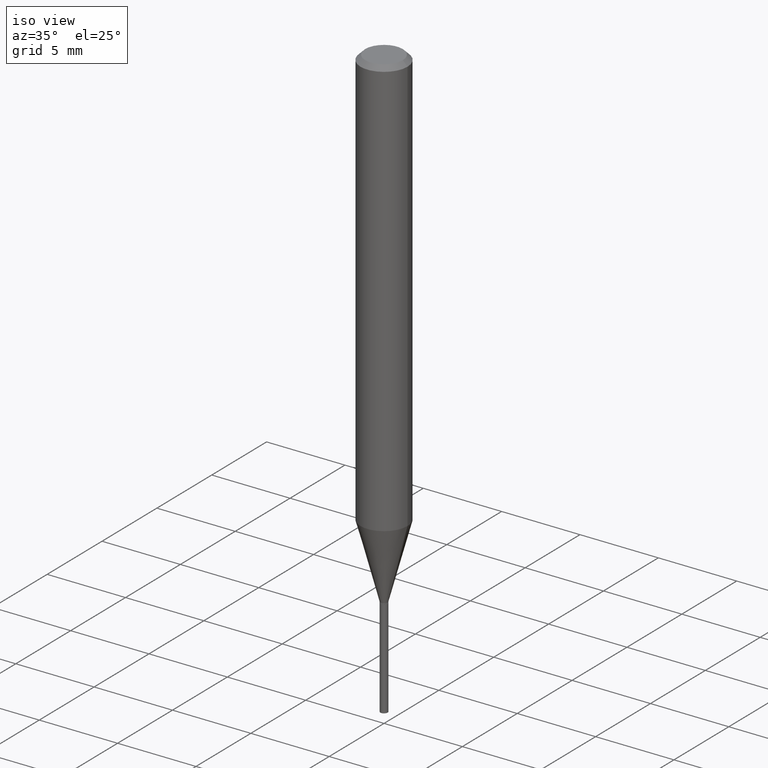
[diagram: clean part render]
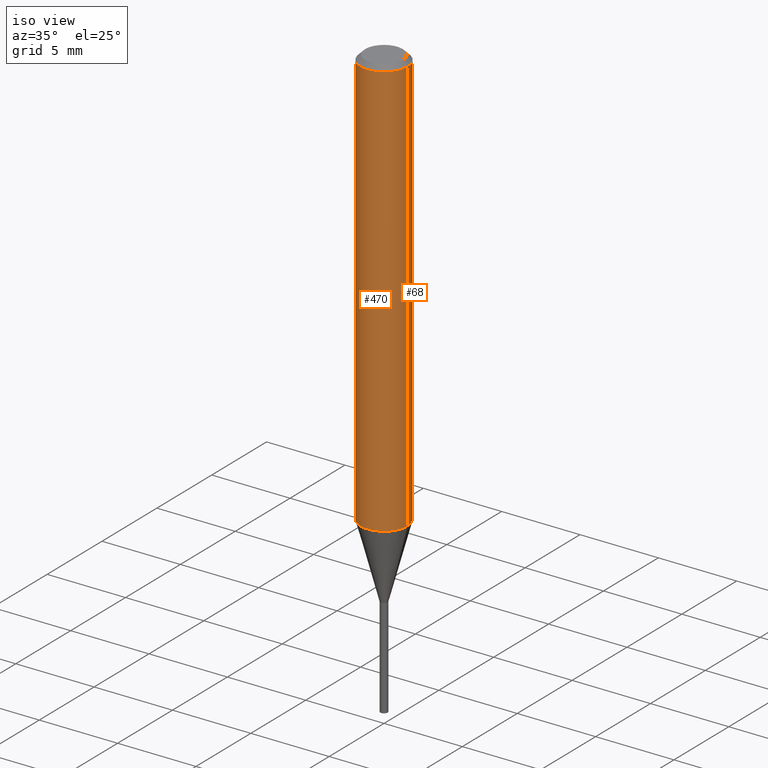
[diagram: same view with one multi-face feature highlighted, each face labeled with its STEP entity id]
A machine part, iso view. The highlighted faces form ONE feature: a constant-radius fillet chain: 2 tangent blend faces with common blend radius 1.4999 mm. The faces share edges in the B-rep.
Their STEP definitions:
[1] entity #68 (Cylinder):
#2 = ORIENTED_EDGE ( 'NONE', *, *, #378, .T. ) ;
#5 = VERTEX_POINT ( 'NONE', #65 ) ;
#17 = DIRECTION ( 'NONE',  ( -2.445468806185136597E-29, 3.491481338843145583E-15, 1.000000000000000000 ) ) ;
#19 = VECTOR ( 'NONE', #276, 39.37007874015748143 ) ;
#22 = EDGE_CURVE ( 'NONE', #5, #281, #349, .T. ) ;
#44 = CARTESIAN_POINT ( 'NONE',  ( 2.888098660104664204E-31, -4.123439461173780263E-17, -0.01181000000000007218 ) ) ;
#56 = EDGE_CURVE ( 'NONE', #344, #281, #215, .T. ) ;
#58 = DIRECTION ( 'NONE',  ( -2.445468806185136597E-29, 3.491481338843145583E-15, 1.000000000000000000 ) ) ;
#65 = CARTESIAN_POINT ( 'NONE',  ( -0.05905000000000013710, -3.263230161061479349E-15, -1.054797459621556133 ) ) ;
#68 = ADVANCED_FACE ( 'NONE', ( #93 ), #162, .T. ) ;
#74 = CARTESIAN_POINT ( 'NONE',  ( -0.05904999999999999832, -1.442444535103438398E-15, -0.01181000000000007218 ) ) ;
#92 = CARTESIAN_POINT ( 'NONE',  ( 0.000000000000000000, 0.000000000000000000, 0.000000000000000000 ) ) ;
#93 = FACE_OUTER_BOUND ( 'NONE', #453, .T. ) ;
#119 = VECTOR ( 'NONE', #219, 39.37007874015748143 ) ;
#123 = DIRECTION ( 'NONE',  ( -2.445468806185136597E-29, 3.491481338843145583E-15, 1.000000000000000000 ) ) ;
#146 = CARTESIAN_POINT ( 'NONE',  ( -0.05905000000000006771, 4.195754854663396409E-16, -2.904631170795525045E-30 ) ) ;
#162 = CYLINDRICAL_SURFACE ( 'NONE', #300, 0.05905000000000006771 ) ;
#190 = VERTEX_POINT ( 'NONE', #229 ) ;
#197 = EDGE_CURVE ( 'NONE', #190, #344, #421, .T. ) ;
#202 = CARTESIAN_POINT ( 'NONE',  ( 0.05904999999999999832, -4.535783407291118600E-16, -0.01181000000000007218 ) ) ;
#206 = CIRCLE ( 'NONE', #335, 0.05905000000000013710 ) ;
#210 = DIRECTION ( 'NONE',  ( 1.000000000000000000, -6.982962677686266711E-15, 4.876176775795936353E-29 ) ) ;
#215 = CIRCLE ( 'NONE', #399, 0.05904999999999999832 ) ;
#219 = DIRECTION ( 'NONE',  ( -2.445468806185136877E-29, 3.491481338843145188E-15, 1.000000000000000000 ) ) ;
#221 = ORIENTED_EDGE ( 'NONE', *, *, #197, .F. ) ;
#229 = CARTESIAN_POINT ( 'NONE',  ( 0.05905000000000013710, -4.095149592645195340E-15, -1.054797459621556133 ) ) ;
#263 = CARTESIAN_POINT ( 'NONE',  ( 0.05905000000000006771, -4.123439461173745257E-16, 2.879382386107503723E-30 ) ) ;
#265 = ORIENTED_EDGE ( 'NONE', *, *, #22, .T. ) ;
#276 = DIRECTION ( 'NONE',  ( -2.445468806185136877E-29, 3.491481338843145188E-15, 1.000000000000000000 ) ) ;
#281 = VERTEX_POINT ( 'NONE', #74 ) ;
#300 = AXIS2_PLACEMENT_3D ( 'NONE', #92, #58, #210 ) ;
#335 = AXIS2_PLACEMENT_3D ( 'NONE', #431, #123, #390 ) ;
#344 = VERTEX_POINT ( 'NONE', #202 ) ;
#349 = LINE ( 'NONE', #146, #19 ) ;
#356 = DIRECTION ( 'NONE',  ( 1.000000000000000000, -6.982962677686266711E-15, 0.000000000000000000 ) ) ;
#378 = EDGE_CURVE ( 'NONE', #190, #5, #206, .T. ) ;
#390 = DIRECTION ( 'NONE',  ( 1.000000000000000000, -6.982962677686264344E-15, 0.000000000000000000 ) ) ;
#399 = AXIS2_PLACEMENT_3D ( 'NONE', #44, #17, #356 ) ;
#420 = ORIENTED_EDGE ( 'NONE', *, *, #56, .F. ) ;
#421 = LINE ( 'NONE', #263, #119 ) ;
#431 = CARTESIAN_POINT ( 'NONE',  ( 2.579474284347841875E-29, -3.682805646527819631E-15, -1.054797459621556133 ) ) ;
#453 = EDGE_LOOP ( 'NONE', ( #2, #265, #420, #221 ) ) ;
[2] entity #470 (Cylinder):
#5 = VERTEX_POINT ( 'NONE', #65 ) ;
#19 = VECTOR ( 'NONE', #276, 39.37007874015748143 ) ;
#22 = EDGE_CURVE ( 'NONE', #5, #281, #349, .T. ) ;
#49 = DIRECTION ( 'NONE',  ( -2.445468806185136597E-29, 3.491481338843145583E-15, 1.000000000000000000 ) ) ;
#65 = CARTESIAN_POINT ( 'NONE',  ( -0.05905000000000013710, -3.263230161061479349E-15, -1.054797459621556133 ) ) ;
#74 = CARTESIAN_POINT ( 'NONE',  ( -0.05904999999999999832, -1.442444535103438398E-15, -0.01181000000000007218 ) ) ;
#102 = EDGE_LOOP ( 'NONE', ( #278, #457, #303, #145 ) ) ;
#119 = VECTOR ( 'NONE', #219, 39.37007874015748143 ) ;
#128 = CIRCLE ( 'NONE', #330, 0.05904999999999999832 ) ;
#145 = ORIENTED_EDGE ( 'NONE', *, *, #157, .F. ) ;
#146 = CARTESIAN_POINT ( 'NONE',  ( -0.05905000000000006771, 4.195754854663396409E-16, -2.904631170795525045E-30 ) ) ;
#157 = EDGE_CURVE ( 'NONE', #281, #344, #128, .T. ) ;
#166 = AXIS2_PLACEMENT_3D ( 'NONE', #396, #49, #250 ) ;
#190 = VERTEX_POINT ( 'NONE', #229 ) ;
#197 = EDGE_CURVE ( 'NONE', #190, #344, #421, .T. ) ;
#202 = CARTESIAN_POINT ( 'NONE',  ( 0.05904999999999999832, -4.535783407291118600E-16, -0.01181000000000007218 ) ) ;
#219 = DIRECTION ( 'NONE',  ( -2.445468806185136877E-29, 3.491481338843145188E-15, 1.000000000000000000 ) ) ;
#229 = CARTESIAN_POINT ( 'NONE',  ( 0.05905000000000013710, -4.095149592645195340E-15, -1.054797459621556133 ) ) ;
#239 = CYLINDRICAL_SURFACE ( 'NONE', #166, 0.05905000000000006771 ) ;
#245 = FACE_OUTER_BOUND ( 'NONE', #102, .T. ) ;
#250 = DIRECTION ( 'NONE',  ( 1.000000000000000000, -6.982962677686266711E-15, 4.876176775795936353E-29 ) ) ;
#253 = EDGE_CURVE ( 'NONE', #5, #190, #388, .T. ) ;
#263 = CARTESIAN_POINT ( 'NONE',  ( 0.05905000000000006771, -4.123439461173745257E-16, 2.879382386107503723E-30 ) ) ;
#276 = DIRECTION ( 'NONE',  ( -2.445468806185136877E-29, 3.491481338843145188E-15, 1.000000000000000000 ) ) ;
#278 = ORIENTED_EDGE ( 'NONE', *, *, #22, .F. ) ;
#281 = VERTEX_POINT ( 'NONE', #74 ) ;
#303 = ORIENTED_EDGE ( 'NONE', *, *, #197, .T. ) ;
#330 = AXIS2_PLACEMENT_3D ( 'NONE', #456, #419, #348 ) ;
#344 = VERTEX_POINT ( 'NONE', #202 ) ;
#348 = DIRECTION ( 'NONE',  ( 1.000000000000000000, -6.982962677686266711E-15, 0.000000000000000000 ) ) ;
#349 = LINE ( 'NONE', #146, #19 ) ;
#368 = AXIS2_PLACEMENT_3D ( 'NONE', #417, #384, #458 ) ;
#384 = DIRECTION ( 'NONE',  ( -2.445468806185136597E-29, 3.491481338843145583E-15, 1.000000000000000000 ) ) ;
#388 = CIRCLE ( 'NONE', #368, 0.05905000000000013710 ) ;
#396 = CARTESIAN_POINT ( 'NONE',  ( 0.000000000000000000, 0.000000000000000000, 0.000000000000000000 ) ) ;
#417 = CARTESIAN_POINT ( 'NONE',  ( 2.579474284347841875E-29, -3.682805646527819631E-15, -1.054797459621556133 ) ) ;
#419 = DIRECTION ( 'NONE',  ( -2.445468806185136597E-29, 3.491481338843145583E-15, 1.000000000000000000 ) ) ;
#421 = LINE ( 'NONE', #263, #119 ) ;
#456 = CARTESIAN_POINT ( 'NONE',  ( 2.888098660104664204E-31, -4.123439461173780263E-17, -0.01181000000000007218 ) ) ;
#457 = ORIENTED_EDGE ( 'NONE', *, *, #253, .T. ) ;
#458 = DIRECTION ( 'NONE',  ( 1.000000000000000000, -6.982962677686264344E-15, 0.000000000000000000 ) ) ;
#470 = ADVANCED_FACE ( 'NONE', ( #245 ), #239, .T. ) ;